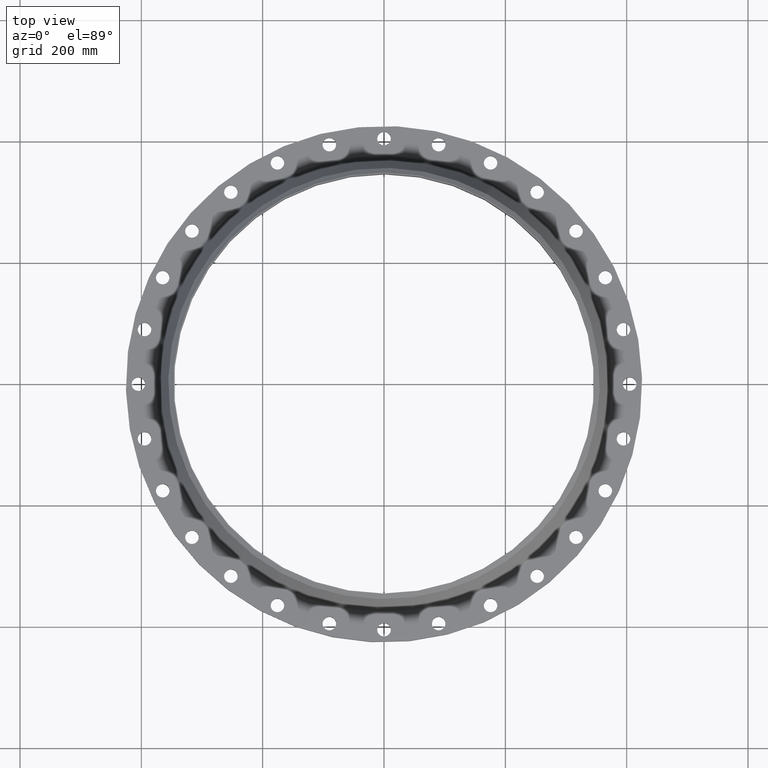
[diagram: clean part render]
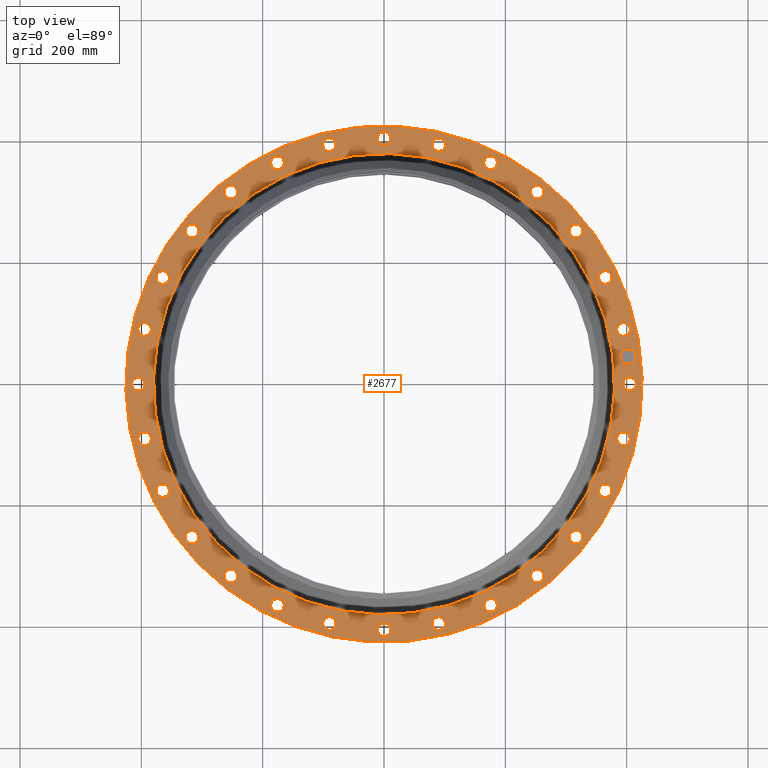
[diagram: same view with one face highlighted and labeled with its STEP entity id]
A machine part, top view. The second image highlights one B-rep face of the part: STEP entity #2677.
In plain terms, the highlighted planar face has unit normal (0, 0, -1).
Its self-contained STEP definition (entity closure, byte-faithful):
#65=AXIS2_PLACEMENT_3D('Circle Axis2P3D',#63,#64,$) ;
#89=AXIS2_PLACEMENT_3D('Circle Axis2P3D',#87,#88,$) ;
#123=AXIS2_PLACEMENT_3D('Circle Axis2P3D',#121,#122,$) ;
#147=AXIS2_PLACEMENT_3D('Circle Axis2P3D',#145,#146,$) ;
#164=AXIS2_PLACEMENT_3D('Circle Axis2P3D',#162,#163,$) ;
#199=AXIS2_PLACEMENT_3D('Circle Axis2P3D',#197,#198,$) ;
#1367=AXIS2_PLACEMENT_3D('Circle Axis2P3D',#1365,#1366,$) ;
#1379=AXIS2_PLACEMENT_3D('Circle Axis2P3D',#1377,#1378,$) ;
#1411=AXIS2_PLACEMENT_3D('Circle Axis2P3D',#1409,#1410,$) ;
#1423=AXIS2_PLACEMENT_3D('Circle Axis2P3D',#1421,#1422,$) ;
#1455=AXIS2_PLACEMENT_3D('Circle Axis2P3D',#1453,#1454,$) ;
#1467=AXIS2_PLACEMENT_3D('Circle Axis2P3D',#1465,#1466,$) ;
#1499=AXIS2_PLACEMENT_3D('Circle Axis2P3D',#1497,#1498,$) ;
#1511=AXIS2_PLACEMENT_3D('Circle Axis2P3D',#1509,#1510,$) ;
#1543=AXIS2_PLACEMENT_3D('Circle Axis2P3D',#1541,#1542,$) ;
#1555=AXIS2_PLACEMENT_3D('Circle Axis2P3D',#1553,#1554,$) ;
#1587=AXIS2_PLACEMENT_3D('Circle Axis2P3D',#1585,#1586,$) ;
#1599=AXIS2_PLACEMENT_3D('Circle Axis2P3D',#1597,#1598,$) ;
#1631=AXIS2_PLACEMENT_3D('Circle Axis2P3D',#1629,#1630,$) ;
#1643=AXIS2_PLACEMENT_3D('Circle Axis2P3D',#1641,#1642,$) ;
#1675=AXIS2_PLACEMENT_3D('Circle Axis2P3D',#1673,#1674,$) ;
#1687=AXIS2_PLACEMENT_3D('Circle Axis2P3D',#1685,#1686,$) ;
#1719=AXIS2_PLACEMENT_3D('Circle Axis2P3D',#1717,#1718,$) ;
#1731=AXIS2_PLACEMENT_3D('Circle Axis2P3D',#1729,#1730,$) ;
#1763=AXIS2_PLACEMENT_3D('Circle Axis2P3D',#1761,#1762,$) ;
#1775=AXIS2_PLACEMENT_3D('Circle Axis2P3D',#1773,#1774,$) ;
#1807=AXIS2_PLACEMENT_3D('Circle Axis2P3D',#1805,#1806,$) ;
#1819=AXIS2_PLACEMENT_3D('Circle Axis2P3D',#1817,#1818,$) ;
#1851=AXIS2_PLACEMENT_3D('Circle Axis2P3D',#1849,#1850,$) ;
#1863=AXIS2_PLACEMENT_3D('Circle Axis2P3D',#1861,#1862,$) ;
#1895=AXIS2_PLACEMENT_3D('Circle Axis2P3D',#1893,#1894,$) ;
#1907=AXIS2_PLACEMENT_3D('Circle Axis2P3D',#1905,#1906,$) ;
#1939=AXIS2_PLACEMENT_3D('Circle Axis2P3D',#1937,#1938,$) ;
#1951=AXIS2_PLACEMENT_3D('Circle Axis2P3D',#1949,#1950,$) ;
#1983=AXIS2_PLACEMENT_3D('Circle Axis2P3D',#1981,#1982,$) ;
#1995=AXIS2_PLACEMENT_3D('Circle Axis2P3D',#1993,#1994,$) ;
#2027=AXIS2_PLACEMENT_3D('Circle Axis2P3D',#2025,#2026,$) ;
#2039=AXIS2_PLACEMENT_3D('Circle Axis2P3D',#2037,#2038,$) ;
#2071=AXIS2_PLACEMENT_3D('Circle Axis2P3D',#2069,#2070,$) ;
#2083=AXIS2_PLACEMENT_3D('Circle Axis2P3D',#2081,#2082,$) ;
#2115=AXIS2_PLACEMENT_3D('Circle Axis2P3D',#2113,#2114,$) ;
#2127=AXIS2_PLACEMENT_3D('Circle Axis2P3D',#2125,#2126,$) ;
#2159=AXIS2_PLACEMENT_3D('Circle Axis2P3D',#2157,#2158,$) ;
#2171=AXIS2_PLACEMENT_3D('Circle Axis2P3D',#2169,#2170,$) ;
#2203=AXIS2_PLACEMENT_3D('Circle Axis2P3D',#2201,#2202,$) ;
#2215=AXIS2_PLACEMENT_3D('Circle Axis2P3D',#2213,#2214,$) ;
#2247=AXIS2_PLACEMENT_3D('Circle Axis2P3D',#2245,#2246,$) ;
#2259=AXIS2_PLACEMENT_3D('Circle Axis2P3D',#2257,#2258,$) ;
#2291=AXIS2_PLACEMENT_3D('Circle Axis2P3D',#2289,#2290,$) ;
#2303=AXIS2_PLACEMENT_3D('Circle Axis2P3D',#2301,#2302,$) ;
#2335=AXIS2_PLACEMENT_3D('Circle Axis2P3D',#2333,#2334,$) ;
#2347=AXIS2_PLACEMENT_3D('Circle Axis2P3D',#2345,#2346,$) ;
#2379=AXIS2_PLACEMENT_3D('Circle Axis2P3D',#2377,#2378,$) ;
#2391=AXIS2_PLACEMENT_3D('Circle Axis2P3D',#2389,#2390,$) ;
#2423=AXIS2_PLACEMENT_3D('Circle Axis2P3D',#2421,#2422,$) ;
#2435=AXIS2_PLACEMENT_3D('Circle Axis2P3D',#2433,#2434,$) ;
#2467=AXIS2_PLACEMENT_3D('Circle Axis2P3D',#2465,#2466,$) ;
#2479=AXIS2_PLACEMENT_3D('Circle Axis2P3D',#2477,#2478,$) ;
#2511=AXIS2_PLACEMENT_3D('Circle Axis2P3D',#2509,#2510,$) ;
#2523=AXIS2_PLACEMENT_3D('Circle Axis2P3D',#2521,#2522,$) ;
#2537=AXIS2_PLACEMENT_3D('Plane Axis2P3D',#2534,#2535,#2536) ;
#2661=AXIS2_PLACEMENT_3D('Circle Axis2P3D',#2659,#2660,$) ;
#2670=AXIS2_PLACEMENT_3D('Circle Axis2P3D',#2668,#2669,$) ;
#46=CARTESIAN_POINT('Vertex',(15.5538636728,0.210947236987,1.38000000001)) ;
#60=CARTESIAN_POINT('Vertex',(16.3261363273,-0.210947236987,1.38000000001)) ;
#63=CARTESIAN_POINT('Axis2P3D Location',(15.9400000001,0.,1.38000000001)) ;
#87=CARTESIAN_POINT('Axis2P3D Location',(15.9400000001,0.,1.38000000001)) ;
#118=CARTESIAN_POINT('Vertex',(-8.03037777165,-14.6995079117,1.38000000001)) ;
#121=CARTESIAN_POINT('Axis2P3D Location',(0.,0.,1.38000000001)) ;
#125=CARTESIAN_POINT('Vertex',(8.03037777165,14.6995079117,1.38000000001)) ;
#145=CARTESIAN_POINT('Axis2P3D Location',(0.,0.,1.38000000001)) ;
#162=CARTESIAN_POINT('Axis2P3D Location',(0.,0.,1.38000000001)) ;
#166=CARTESIAN_POINT('Vertex',(7.1745114459,13.132855111,1.38000000001)) ;
#168=CARTESIAN_POINT('Vertex',(-7.1745114459,-13.132855111,1.38000000001)) ;
#197=CARTESIAN_POINT('Axis2P3D Location',(0.,0.,1.38000000001)) ;
#1355=CARTESIAN_POINT('Vertex',(-15.5538636728,-0.210947236987,1.38000000001)) ;
#1362=CARTESIAN_POINT('Vertex',(-16.3261363273,0.210947236987,1.38000000001)) ;
#1365=CARTESIAN_POINT('Axis2P3D Location',(-15.9400000001,-9.03086900289E-015,1.38000000001)) ;
#1377=CARTESIAN_POINT('Axis2P3D Location',(-15.9400000001,-9.03086900289E-015,1.38000000001)) ;
#1399=CARTESIAN_POINT('Vertex',(15.1169556607,3.66671862044,1.38000000001)) ;
#1406=CARTESIAN_POINT('Vertex',(15.9637461798,3.42724875411,1.38000000001)) ;
#1409=CARTESIAN_POINT('Axis2P3D Location',(15.5403509202,3.54698368728,1.38000000001)) ;
#1421=CARTESIAN_POINT('Axis2P3D Location',(15.5403509202,3.54698368728,1.38000000001)) ;
#1443=CARTESIAN_POINT('Vertex',(-15.1169556607,-3.66671862044,1.38000000001)) ;
#1450=CARTESIAN_POINT('Vertex',(-15.9637461798,-3.42724875411,1.38000000001)) ;
#1453=CARTESIAN_POINT('Axis2P3D Location',(-15.5403509202,-3.54698368728,1.38000000001)) ;
#1465=CARTESIAN_POINT('Axis2P3D Location',(-15.5403509202,-3.54698368728,1.38000000001)) ;
#1487=CARTESIAN_POINT('Vertex',(15.2108360131,-3.25540192177,1.38000000001)) ;
#1494=CARTESIAN_POINT('Vertex',(15.8698658274,-3.83856545278,1.38000000001)) ;
#1497=CARTESIAN_POINT('Axis2P3D Location',(15.5403509202,-3.54698368728,1.38000000001)) ;
#1509=CARTESIAN_POINT('Axis2P3D Location',(15.5403509202,-3.54698368728,1.38000000001)) ;
#1531=CARTESIAN_POINT('Vertex',(9.53275018849,12.2920237444,1.38000000001)) ;
#1538=CARTESIAN_POINT('Vertex',(10.3441046948,12.6327639168,1.38000000001)) ;
#1541=CARTESIAN_POINT('Axis2P3D Location',(9.93842744167,12.4623938306,1.38000000001)) ;
#1553=CARTESIAN_POINT('Axis2P3D Location',(9.93842744167,12.4623938306,1.38000000001)) ;
#1575=CARTESIAN_POINT('Vertex',(-14.1050735208,6.5585116348,1.38000000001)) ;
#1582=CARTESIAN_POINT('Vertex',(-14.6178139881,7.27370196833,1.38000000001)) ;
#1585=CARTESIAN_POINT('Axis2P3D Location',(-14.3614437544,6.91610680156,1.38000000001)) ;
#1597=CARTESIAN_POINT('Axis2P3D Location',(-14.3614437544,6.91610680156,1.38000000001)) ;
#1619=CARTESIAN_POINT('Vertex',(-3.66671862044,15.1169556607,1.38000000001)) ;
#1626=CARTESIAN_POINT('Vertex',(-3.42724875411,15.9637461798,1.38000000001)) ;
#1629=CARTESIAN_POINT('Axis2P3D Location',(-3.54698368728,15.5403509202,1.38000000001)) ;
#1641=CARTESIAN_POINT('Axis2P3D Location',(-3.54698368728,15.5403509202,1.38000000001)) ;
#1663=CARTESIAN_POINT('Vertex',(12.2920237444,-9.53275018849,1.38000000001)) ;
#1670=CARTESIAN_POINT('Vertex',(12.6327639168,-10.3441046948,1.38000000001)) ;
#1673=CARTESIAN_POINT('Axis2P3D Location',(12.4623938306,-9.93842744167,1.38000000001)) ;
#1685=CARTESIAN_POINT('Axis2P3D Location',(12.4623938306,-9.93842744167,1.38000000001)) ;
#1707=CARTESIAN_POINT('Vertex',(12.0289768424,9.86260057053,1.38000000001)) ;
#1714=CARTESIAN_POINT('Vertex',(12.8958108187,10.0142543128,1.38000000001)) ;
#1717=CARTESIAN_POINT('Axis2P3D Location',(12.4623938306,9.93842744167,1.38000000001)) ;
#1729=CARTESIAN_POINT('Axis2P3D Location',(12.4623938306,9.93842744167,1.38000000001)) ;
#1751=CARTESIAN_POINT('Vertex',(9.86260057053,-12.0289768424,1.38000000001)) ;
#1758=CARTESIAN_POINT('Vertex',(10.0142543128,-12.8958108187,1.38000000001)) ;
#1761=CARTESIAN_POINT('Axis2P3D Location',(9.93842744167,-12.4623938306,1.38000000001)) ;
#1773=CARTESIAN_POINT('Axis2P3D Location',(9.93842744167,-12.4623938306,1.38000000001)) ;
#1795=CARTESIAN_POINT('Vertex',(-9.86260057053,12.0289768424,1.38000000001)) ;
#1802=CARTESIAN_POINT('Vertex',(-10.0142543128,12.8958108187,1.38000000001)) ;
#1805=CARTESIAN_POINT('Axis2P3D Location',(-9.93842744167,12.4623938306,1.38000000001)) ;
#1817=CARTESIAN_POINT('Axis2P3D Location',(-9.93842744167,12.4623938306,1.38000000001)) ;
#1839=CARTESIAN_POINT('Vertex',(6.93862542139,-13.9220203689,1.38000000001)) ;
#1846=CARTESIAN_POINT('Vertex',(6.89358818174,-14.80086714,1.38000000001)) ;
#1849=CARTESIAN_POINT('Axis2P3D Location',(6.91610680156,-14.3614437544,1.38000000001)) ;
#1861=CARTESIAN_POINT('Axis2P3D Location',(6.91610680156,-14.3614437544,1.38000000001)) ;
#1883=CARTESIAN_POINT('Vertex',(3.25540192177,15.2108360131,1.38000000001)) ;
#1890=CARTESIAN_POINT('Vertex',(3.83856545278,15.8698658274,1.38000000001)) ;
#1893=CARTESIAN_POINT('Axis2P3D Location',(3.54698368728,15.5403509202,1.38000000001)) ;
#1905=CARTESIAN_POINT('Axis2P3D Location',(3.54698368728,15.5403509202,1.38000000001)) ;
#1927=CARTESIAN_POINT('Vertex',(3.66671862044,-15.1169556607,1.38000000001)) ;
#1934=CARTESIAN_POINT('Vertex',(3.42724875411,-15.9637461798,1.38000000001)) ;
#1937=CARTESIAN_POINT('Axis2P3D Location',(3.54698368728,-15.5403509202,1.38000000001)) ;
#1949=CARTESIAN_POINT('Axis2P3D Location',(3.54698368728,-15.5403509202,1.38000000001)) ;
#1971=CARTESIAN_POINT('Vertex',(13.9220203689,6.93862542139,1.38000000001)) ;
#1978=CARTESIAN_POINT('Vertex',(14.80086714,6.89358818174,1.38000000001)) ;
#1981=CARTESIAN_POINT('Axis2P3D Location',(14.3614437544,6.91610680156,1.38000000001)) ;
#1993=CARTESIAN_POINT('Axis2P3D Location',(14.3614437544,6.91610680156,1.38000000001)) ;
#2015=CARTESIAN_POINT('Vertex',(0.210947236987,-15.5538636728,1.38000000001)) ;
#2022=CARTESIAN_POINT('Vertex',(-0.210947236987,-16.3261363273,1.38000000001)) ;
#2025=CARTESIAN_POINT('Axis2P3D Location',(4.51543450144E-015,-15.9400000001,1.38000000001)) ;
#2037=CARTESIAN_POINT('Axis2P3D Location',(4.51543450144E-015,-15.9400000001,1.38000000001)) ;
#2059=CARTESIAN_POINT('Vertex',(-15.2108360131,3.25540192177,1.38000000001)) ;
#2066=CARTESIAN_POINT('Vertex',(-15.8698658274,3.83856545278,1.38000000001)) ;
#2069=CARTESIAN_POINT('Axis2P3D Location',(-15.5403509202,3.54698368728,1.38000000001)) ;
#2081=CARTESIAN_POINT('Axis2P3D Location',(-15.5403509202,3.54698368728,1.38000000001)) ;
#2103=CARTESIAN_POINT('Vertex',(-3.25540192177,-15.2108360131,1.38000000001)) ;
#2110=CARTESIAN_POINT('Vertex',(-3.83856545278,-15.8698658274,1.38000000001)) ;
#2113=CARTESIAN_POINT('Axis2P3D Location',(-3.54698368728,-15.5403509202,1.38000000001)) ;
#2125=CARTESIAN_POINT('Axis2P3D Location',(-3.54698368728,-15.5403509202,1.38000000001)) ;
#2147=CARTESIAN_POINT('Vertex',(-12.2920237444,9.53275018849,1.38000000001)) ;
#2154=CARTESIAN_POINT('Vertex',(-12.6327639168,10.3441046948,1.38000000001)) ;
#2157=CARTESIAN_POINT('Axis2P3D Location',(-12.4623938306,9.93842744167,1.38000000001)) ;
#2169=CARTESIAN_POINT('Axis2P3D Location',(-12.4623938306,9.93842744167,1.38000000001)) ;
#2191=CARTESIAN_POINT('Vertex',(-6.5585116348,-14.1050735208,1.38000000001)) ;
#2198=CARTESIAN_POINT('Vertex',(-7.27370196833,-14.6178139881,1.38000000001)) ;
#2201=CARTESIAN_POINT('Axis2P3D Location',(-6.91610680156,-14.3614437544,1.38000000001)) ;
#2213=CARTESIAN_POINT('Axis2P3D Location',(-6.91610680156,-14.3614437544,1.38000000001)) ;
#2235=CARTESIAN_POINT('Vertex',(-6.93862542139,13.9220203689,1.38000000001)) ;
#2242=CARTESIAN_POINT('Vertex',(-6.89358818174,14.80086714,1.38000000001)) ;
#2245=CARTESIAN_POINT('Axis2P3D Location',(-6.91610680156,14.3614437544,1.38000000001)) ;
#2257=CARTESIAN_POINT('Axis2P3D Location',(-6.91610680156,14.3614437544,1.38000000001)) ;
#2279=CARTESIAN_POINT('Vertex',(-9.53275018849,-12.2920237444,1.38000000001)) ;
#2286=CARTESIAN_POINT('Vertex',(-10.3441046948,-12.6327639168,1.38000000001)) ;
#2289=CARTESIAN_POINT('Axis2P3D Location',(-9.93842744167,-12.4623938306,1.38000000001)) ;
#2301=CARTESIAN_POINT('Axis2P3D Location',(-9.93842744167,-12.4623938306,1.38000000001)) ;
#2323=CARTESIAN_POINT('Vertex',(-0.210947236987,15.5538636728,1.38000000001)) ;
#2330=CARTESIAN_POINT('Vertex',(0.210947236987,16.3261363273,1.38000000001)) ;
#2333=CARTESIAN_POINT('Axis2P3D Location',(-6.90200620363E-016,15.9400000001,1.38000000001)) ;
#2345=CARTESIAN_POINT('Axis2P3D Location',(-6.90200620363E-016,15.9400000001,1.38000000001)) ;
#2367=CARTESIAN_POINT('Vertex',(-12.0289768424,-9.86260057053,1.38000000001)) ;
#2374=CARTESIAN_POINT('Vertex',(-12.8958108187,-10.0142543128,1.38000000001)) ;
#2377=CARTESIAN_POINT('Axis2P3D Location',(-12.4623938306,-9.93842744167,1.38000000001)) ;
#2389=CARTESIAN_POINT('Axis2P3D Location',(-12.4623938306,-9.93842744167,1.38000000001)) ;
#2411=CARTESIAN_POINT('Vertex',(6.5585116348,14.1050735208,1.38000000001)) ;
#2418=CARTESIAN_POINT('Vertex',(7.27370196833,14.6178139881,1.38000000001)) ;
#2421=CARTESIAN_POINT('Axis2P3D Location',(6.91610680156,14.3614437544,1.38000000001)) ;
#2433=CARTESIAN_POINT('Axis2P3D Location',(6.91610680156,14.3614437544,1.38000000001)) ;
#2455=CARTESIAN_POINT('Vertex',(-13.9220203689,-6.93862542139,1.38000000001)) ;
#2462=CARTESIAN_POINT('Vertex',(-14.80086714,-6.89358818174,1.38000000001)) ;
#2465=CARTESIAN_POINT('Axis2P3D Location',(-14.3614437544,-6.91610680156,1.38000000001)) ;
#2477=CARTESIAN_POINT('Axis2P3D Location',(-14.3614437544,-6.91610680156,1.38000000001)) ;
#2499=CARTESIAN_POINT('Vertex',(14.1050735208,-6.5585116348,1.38000000001)) ;
#2506=CARTESIAN_POINT('Vertex',(14.6178139881,-7.27370196833,1.38000000001)) ;
#2509=CARTESIAN_POINT('Axis2P3D Location',(14.3614437544,-6.91610680156,1.38000000001)) ;
#2521=CARTESIAN_POINT('Axis2P3D Location',(14.3614437544,-6.91610680156,1.38000000001)) ;
#2534=CARTESIAN_POINT('Axis2P3D Location',(0.,16.7500000001,1.38000000001)) ;
#2659=CARTESIAN_POINT('Axis2P3D Location',(15.8397726258,1.78471374909,1.38000000001)) ;
#2663=CARTESIAN_POINT('Vertex',(15.783790516,2.28156871525,1.38000000001)) ;
#2665=CARTESIAN_POINT('Vertex',(15.8957547355,1.28785878294,1.38000000001)) ;
#2668=CARTESIAN_POINT('Axis2P3D Location',(15.8397726258,1.78471374909,1.38000000001)) ;
#64=DIRECTION('Axis2P3D Direction',(0.,-0.,-0.0393700787402)) ;
#88=DIRECTION('Axis2P3D Direction',(0.,-0.,-0.0393700787402)) ;
#122=DIRECTION('Axis2P3D Direction',(0.,0.,-0.0393700787402)) ;
#146=DIRECTION('Axis2P3D Direction',(0.,0.,-0.0393700787402)) ;
#163=DIRECTION('Axis2P3D Direction',(0.,0.,-0.0393700787402)) ;
#198=DIRECTION('Axis2P3D Direction',(0.,0.,-0.0393700787402)) ;
#1366=DIRECTION('Axis2P3D Direction',(-0.,0.,-0.0393700787402)) ;
#1378=DIRECTION('Axis2P3D Direction',(-0.,0.,-0.0393700787402)) ;
#1410=DIRECTION('Axis2P3D Direction',(0.,0.,-0.0393700787402)) ;
#1422=DIRECTION('Axis2P3D Direction',(0.,0.,-0.0393700787402)) ;
#1454=DIRECTION('Axis2P3D Direction',(-0.,0.,-0.0393700787402)) ;
#1466=DIRECTION('Axis2P3D Direction',(-0.,0.,-0.0393700787402)) ;
#1498=DIRECTION('Axis2P3D Direction',(0.,-0.,-0.0393700787402)) ;
#1510=DIRECTION('Axis2P3D Direction',(0.,-0.,-0.0393700787402)) ;
#1542=DIRECTION('Axis2P3D Direction',(0.,0.,-0.0393700787402)) ;
#1554=DIRECTION('Axis2P3D Direction',(0.,0.,-0.0393700787402)) ;
#1586=DIRECTION('Axis2P3D Direction',(0.,0.,-0.0393700787402)) ;
#1598=DIRECTION('Axis2P3D Direction',(0.,0.,-0.0393700787402)) ;
#1630=DIRECTION('Axis2P3D Direction',(0.,0.,-0.0393700787402)) ;
#1642=DIRECTION('Axis2P3D Direction',(0.,0.,-0.0393700787402)) ;
#1674=DIRECTION('Axis2P3D Direction',(0.,-0.,-0.0393700787402)) ;
#1686=DIRECTION('Axis2P3D Direction',(0.,-0.,-0.0393700787402)) ;
#1718=DIRECTION('Axis2P3D Direction',(0.,0.,-0.0393700787402)) ;
#1730=DIRECTION('Axis2P3D Direction',(0.,0.,-0.0393700787402)) ;
#1762=DIRECTION('Axis2P3D Direction',(0.,-0.,-0.0393700787402)) ;
#1774=DIRECTION('Axis2P3D Direction',(0.,-0.,-0.0393700787402)) ;
#1806=DIRECTION('Axis2P3D Direction',(0.,0.,-0.0393700787402)) ;
#1818=DIRECTION('Axis2P3D Direction',(0.,0.,-0.0393700787402)) ;
#1850=DIRECTION('Axis2P3D Direction',(0.,-0.,-0.0393700787402)) ;
#1862=DIRECTION('Axis2P3D Direction',(0.,-0.,-0.0393700787402)) ;
#1894=DIRECTION('Axis2P3D Direction',(0.,0.,-0.0393700787402)) ;
#1906=DIRECTION('Axis2P3D Direction',(0.,0.,-0.0393700787402)) ;
#1938=DIRECTION('Axis2P3D Direction',(0.,-0.,-0.0393700787402)) ;
#1950=DIRECTION('Axis2P3D Direction',(0.,-0.,-0.0393700787402)) ;
#1982=DIRECTION('Axis2P3D Direction',(0.,0.,-0.0393700787402)) ;
#1994=DIRECTION('Axis2P3D Direction',(0.,0.,-0.0393700787402)) ;
#2026=DIRECTION('Axis2P3D Direction',(0.,-0.,-0.0393700787402)) ;
#2038=DIRECTION('Axis2P3D Direction',(0.,-0.,-0.0393700787402)) ;
#2070=DIRECTION('Axis2P3D Direction',(0.,0.,-0.0393700787402)) ;
#2082=DIRECTION('Axis2P3D Direction',(0.,0.,-0.0393700787402)) ;
#2114=DIRECTION('Axis2P3D Direction',(-0.,0.,-0.0393700787402)) ;
#2126=DIRECTION('Axis2P3D Direction',(-0.,0.,-0.0393700787402)) ;
#2158=DIRECTION('Axis2P3D Direction',(0.,0.,-0.0393700787402)) ;
#2170=DIRECTION('Axis2P3D Direction',(0.,0.,-0.0393700787402)) ;
#2202=DIRECTION('Axis2P3D Direction',(-0.,0.,-0.0393700787402)) ;
#2214=DIRECTION('Axis2P3D Direction',(-0.,0.,-0.0393700787402)) ;
#2246=DIRECTION('Axis2P3D Direction',(0.,0.,-0.0393700787402)) ;
#2258=DIRECTION('Axis2P3D Direction',(0.,0.,-0.0393700787402)) ;
#2290=DIRECTION('Axis2P3D Direction',(-0.,0.,-0.0393700787402)) ;
#2302=DIRECTION('Axis2P3D Direction',(-0.,0.,-0.0393700787402)) ;
#2334=DIRECTION('Axis2P3D Direction',(0.,0.,-0.0393700787402)) ;
#2346=DIRECTION('Axis2P3D Direction',(0.,0.,-0.0393700787402)) ;
#2378=DIRECTION('Axis2P3D Direction',(-0.,0.,-0.0393700787402)) ;
#2390=DIRECTION('Axis2P3D Direction',(-0.,0.,-0.0393700787402)) ;
#2422=DIRECTION('Axis2P3D Direction',(0.,0.,-0.0393700787402)) ;
#2434=DIRECTION('Axis2P3D Direction',(0.,0.,-0.0393700787402)) ;
#2466=DIRECTION('Axis2P3D Direction',(-0.,0.,-0.0393700787402)) ;
#2478=DIRECTION('Axis2P3D Direction',(-0.,0.,-0.0393700787402)) ;
#2510=DIRECTION('Axis2P3D Direction',(0.,-0.,-0.0393700787402)) ;
#2522=DIRECTION('Axis2P3D Direction',(0.,-0.,-0.0393700787402)) ;
#2535=DIRECTION('Axis2P3D Direction',(0.,0.,-0.0393700787402)) ;
#2536=DIRECTION('Axis2P3D XDirection',(0.0393700787402,0.,0.)) ;
#2660=DIRECTION('Axis2P3D Direction',(0.,0.,-0.0393700787402)) ;
#2669=DIRECTION('Axis2P3D Direction',(0.,0.,-0.0393700787402)) ;
#2540=ORIENTED_EDGE('',*,*,#149,.F.) ;
#2541=ORIENTED_EDGE('',*,*,#127,.F.) ;
#2544=ORIENTED_EDGE('',*,*,#67,.T.) ;
#2545=ORIENTED_EDGE('',*,*,#91,.T.) ;
#2548=ORIENTED_EDGE('',*,*,#201,.T.) ;
#2549=ORIENTED_EDGE('',*,*,#170,.T.) ;
#2552=ORIENTED_EDGE('',*,*,#1513,.T.) ;
#2553=ORIENTED_EDGE('',*,*,#1501,.T.) ;
#2556=ORIENTED_EDGE('',*,*,#2525,.T.) ;
#2557=ORIENTED_EDGE('',*,*,#2513,.T.) ;
#2560=ORIENTED_EDGE('',*,*,#1689,.T.) ;
#2561=ORIENTED_EDGE('',*,*,#1677,.T.) ;
#2564=ORIENTED_EDGE('',*,*,#1777,.T.) ;
#2565=ORIENTED_EDGE('',*,*,#1765,.T.) ;
#2568=ORIENTED_EDGE('',*,*,#1865,.T.) ;
#2569=ORIENTED_EDGE('',*,*,#1853,.T.) ;
#2572=ORIENTED_EDGE('',*,*,#1953,.T.) ;
#2573=ORIENTED_EDGE('',*,*,#1941,.T.) ;
#2576=ORIENTED_EDGE('',*,*,#2041,.T.) ;
#2577=ORIENTED_EDGE('',*,*,#2029,.T.) ;
#2580=ORIENTED_EDGE('',*,*,#2129,.T.) ;
#2581=ORIENTED_EDGE('',*,*,#2117,.T.) ;
#2584=ORIENTED_EDGE('',*,*,#2217,.T.) ;
#2585=ORIENTED_EDGE('',*,*,#2205,.T.) ;
#2588=ORIENTED_EDGE('',*,*,#2305,.T.) ;
#2589=ORIENTED_EDGE('',*,*,#2293,.T.) ;
#2592=ORIENTED_EDGE('',*,*,#2393,.T.) ;
#2593=ORIENTED_EDGE('',*,*,#2381,.T.) ;
#2596=ORIENTED_EDGE('',*,*,#2481,.T.) ;
#2597=ORIENTED_EDGE('',*,*,#2469,.T.) ;
#2600=ORIENTED_EDGE('',*,*,#1469,.T.) ;
#2601=ORIENTED_EDGE('',*,*,#1457,.T.) ;
#2604=ORIENTED_EDGE('',*,*,#1381,.T.) ;
#2605=ORIENTED_EDGE('',*,*,#1369,.T.) ;
#2608=ORIENTED_EDGE('',*,*,#2085,.T.) ;
#2609=ORIENTED_EDGE('',*,*,#2073,.T.) ;
#2612=ORIENTED_EDGE('',*,*,#1601,.T.) ;
#2613=ORIENTED_EDGE('',*,*,#1589,.T.) ;
#2616=ORIENTED_EDGE('',*,*,#2173,.T.) ;
#2617=ORIENTED_EDGE('',*,*,#2161,.T.) ;
#2620=ORIENTED_EDGE('',*,*,#1821,.T.) ;
#2621=ORIENTED_EDGE('',*,*,#1809,.T.) ;
#2624=ORIENTED_EDGE('',*,*,#2261,.T.) ;
#2625=ORIENTED_EDGE('',*,*,#2249,.T.) ;
#2628=ORIENTED_EDGE('',*,*,#1645,.T.) ;
#2629=ORIENTED_EDGE('',*,*,#1633,.T.) ;
#2632=ORIENTED_EDGE('',*,*,#2349,.T.) ;
#2633=ORIENTED_EDGE('',*,*,#2337,.T.) ;
#2636=ORIENTED_EDGE('',*,*,#1909,.T.) ;
#2637=ORIENTED_EDGE('',*,*,#1897,.T.) ;
#2640=ORIENTED_EDGE('',*,*,#2437,.T.) ;
#2641=ORIENTED_EDGE('',*,*,#2425,.T.) ;
#2644=ORIENTED_EDGE('',*,*,#1557,.T.) ;
#2645=ORIENTED_EDGE('',*,*,#1545,.T.) ;
#2648=ORIENTED_EDGE('',*,*,#1733,.T.) ;
#2649=ORIENTED_EDGE('',*,*,#1721,.T.) ;
#2652=ORIENTED_EDGE('',*,*,#1997,.T.) ;
#2653=ORIENTED_EDGE('',*,*,#1985,.T.) ;
#2656=ORIENTED_EDGE('',*,*,#1425,.T.) ;
#2657=ORIENTED_EDGE('',*,*,#1413,.T.) ;
#2674=ORIENTED_EDGE('',*,*,#2667,.T.) ;
#2675=ORIENTED_EDGE('',*,*,#2672,.T.) ;
#2546=FACE_BOUND('',#2543,.T.) ;
#2550=FACE_BOUND('',#2547,.T.) ;
#2554=FACE_BOUND('',#2551,.T.) ;
#2558=FACE_BOUND('',#2555,.T.) ;
#2562=FACE_BOUND('',#2559,.T.) ;
#2566=FACE_BOUND('',#2563,.T.) ;
#2570=FACE_BOUND('',#2567,.T.) ;
#2574=FACE_BOUND('',#2571,.T.) ;
#2578=FACE_BOUND('',#2575,.T.) ;
#2582=FACE_BOUND('',#2579,.T.) ;
#2586=FACE_BOUND('',#2583,.T.) ;
#2590=FACE_BOUND('',#2587,.T.) ;
#2594=FACE_BOUND('',#2591,.T.) ;
#2598=FACE_BOUND('',#2595,.T.) ;
#2602=FACE_BOUND('',#2599,.T.) ;
#2606=FACE_BOUND('',#2603,.T.) ;
#2610=FACE_BOUND('',#2607,.T.) ;
#2614=FACE_BOUND('',#2611,.T.) ;
#2618=FACE_BOUND('',#2615,.T.) ;
#2622=FACE_BOUND('',#2619,.T.) ;
#2626=FACE_BOUND('',#2623,.T.) ;
#2630=FACE_BOUND('',#2627,.T.) ;
#2634=FACE_BOUND('',#2631,.T.) ;
#2638=FACE_BOUND('',#2635,.T.) ;
#2642=FACE_BOUND('',#2639,.T.) ;
#2646=FACE_BOUND('',#2643,.T.) ;
#2650=FACE_BOUND('',#2647,.T.) ;
#2654=FACE_BOUND('',#2651,.T.) ;
#2658=FACE_BOUND('',#2655,.T.) ;
#2676=FACE_BOUND('',#2673,.T.) ;
#2677=ADVANCED_FACE('PartBody',(#2542,#2546,#2550,#2554,#2558,#2562,#2566,#2570,#2574,#2578,#2582,#2586,#2590,#2594,#2598,#2602,#2606,#2610,#2614,#2618,#2622,#2626,#2630,#2634,#2638,#2642,#2646,#2650,#2654,#2658,#2676),#2538,.F.) ;
#66=CIRCLE('generated circle',#65,0.440000000002) ;
#90=CIRCLE('generated circle',#89,0.440000000002) ;
#124=CIRCLE('generated circle',#123,16.7500000001) ;
#148=CIRCLE('generated circle',#147,16.7500000001) ;
#165=CIRCLE('generated circle',#164,14.9648086474) ;
#200=CIRCLE('generated circle',#199,14.9648086474) ;
#1368=CIRCLE('generated circle',#1367,0.440000000002) ;
#1380=CIRCLE('generated circle',#1379,0.440000000002) ;
#1412=CIRCLE('generated circle',#1411,0.440000000002) ;
#1424=CIRCLE('generated circle',#1423,0.440000000002) ;
#1456=CIRCLE('generated circle',#1455,0.440000000002) ;
#1468=CIRCLE('generated circle',#1467,0.440000000002) ;
#1500=CIRCLE('generated circle',#1499,0.440000000002) ;
#1512=CIRCLE('generated circle',#1511,0.440000000002) ;
#1544=CIRCLE('generated circle',#1543,0.440000000002) ;
#1556=CIRCLE('generated circle',#1555,0.440000000002) ;
#1588=CIRCLE('generated circle',#1587,0.440000000002) ;
#1600=CIRCLE('generated circle',#1599,0.440000000002) ;
#1632=CIRCLE('generated circle',#1631,0.440000000002) ;
#1644=CIRCLE('generated circle',#1643,0.440000000002) ;
#1676=CIRCLE('generated circle',#1675,0.440000000002) ;
#1688=CIRCLE('generated circle',#1687,0.440000000002) ;
#1720=CIRCLE('generated circle',#1719,0.440000000002) ;
#1732=CIRCLE('generated circle',#1731,0.440000000002) ;
#1764=CIRCLE('generated circle',#1763,0.440000000002) ;
#1776=CIRCLE('generated circle',#1775,0.440000000002) ;
#1808=CIRCLE('generated circle',#1807,0.440000000002) ;
#1820=CIRCLE('generated circle',#1819,0.440000000002) ;
#1852=CIRCLE('generated circle',#1851,0.440000000002) ;
#1864=CIRCLE('generated circle',#1863,0.440000000002) ;
#1896=CIRCLE('generated circle',#1895,0.440000000002) ;
#1908=CIRCLE('generated circle',#1907,0.440000000002) ;
#1940=CIRCLE('generated circle',#1939,0.440000000002) ;
#1952=CIRCLE('generated circle',#1951,0.440000000002) ;
#1984=CIRCLE('generated circle',#1983,0.440000000002) ;
#1996=CIRCLE('generated circle',#1995,0.440000000002) ;
#2028=CIRCLE('generated circle',#2027,0.440000000002) ;
#2040=CIRCLE('generated circle',#2039,0.440000000002) ;
#2072=CIRCLE('generated circle',#2071,0.440000000002) ;
#2084=CIRCLE('generated circle',#2083,0.440000000002) ;
#2116=CIRCLE('generated circle',#2115,0.440000000002) ;
#2128=CIRCLE('generated circle',#2127,0.440000000002) ;
#2160=CIRCLE('generated circle',#2159,0.440000000002) ;
#2172=CIRCLE('generated circle',#2171,0.440000000002) ;
#2204=CIRCLE('generated circle',#2203,0.440000000002) ;
#2216=CIRCLE('generated circle',#2215,0.440000000002) ;
#2248=CIRCLE('generated circle',#2247,0.440000000002) ;
#2260=CIRCLE('generated circle',#2259,0.440000000002) ;
#2292=CIRCLE('generated circle',#2291,0.440000000002) ;
#2304=CIRCLE('generated circle',#2303,0.440000000002) ;
#2336=CIRCLE('generated circle',#2335,0.440000000002) ;
#2348=CIRCLE('generated circle',#2347,0.440000000002) ;
#2380=CIRCLE('generated circle',#2379,0.440000000002) ;
#2392=CIRCLE('generated circle',#2391,0.440000000002) ;
#2424=CIRCLE('generated circle',#2423,0.440000000002) ;
#2436=CIRCLE('generated circle',#2435,0.440000000002) ;
#2468=CIRCLE('generated circle',#2467,0.440000000002) ;
#2480=CIRCLE('generated circle',#2479,0.440000000002) ;
#2512=CIRCLE('generated circle',#2511,0.440000000002) ;
#2524=CIRCLE('generated circle',#2523,0.440000000002) ;
#2662=CIRCLE('generated circle',#2661,0.499998853999) ;
#2671=CIRCLE('generated circle',#2670,0.499998853999) ;
#67=EDGE_CURVE('',#47,#61,#66,.T.) ;
#91=EDGE_CURVE('',#61,#47,#90,.T.) ;
#127=EDGE_CURVE('',#119,#126,#124,.T.) ;
#149=EDGE_CURVE('',#126,#119,#148,.T.) ;
#170=EDGE_CURVE('',#167,#169,#165,.T.) ;
#201=EDGE_CURVE('',#169,#167,#200,.T.) ;
#1369=EDGE_CURVE('',#1356,#1363,#1368,.T.) ;
#1381=EDGE_CURVE('',#1363,#1356,#1380,.T.) ;
#1413=EDGE_CURVE('',#1400,#1407,#1412,.T.) ;
#1425=EDGE_CURVE('',#1407,#1400,#1424,.T.) ;
#1457=EDGE_CURVE('',#1444,#1451,#1456,.T.) ;
#1469=EDGE_CURVE('',#1451,#1444,#1468,.T.) ;
#1501=EDGE_CURVE('',#1488,#1495,#1500,.T.) ;
#1513=EDGE_CURVE('',#1495,#1488,#1512,.T.) ;
#1545=EDGE_CURVE('',#1532,#1539,#1544,.T.) ;
#1557=EDGE_CURVE('',#1539,#1532,#1556,.T.) ;
#1589=EDGE_CURVE('',#1576,#1583,#1588,.T.) ;
#1601=EDGE_CURVE('',#1583,#1576,#1600,.T.) ;
#1633=EDGE_CURVE('',#1620,#1627,#1632,.T.) ;
#1645=EDGE_CURVE('',#1627,#1620,#1644,.T.) ;
#1677=EDGE_CURVE('',#1664,#1671,#1676,.T.) ;
#1689=EDGE_CURVE('',#1671,#1664,#1688,.T.) ;
#1721=EDGE_CURVE('',#1708,#1715,#1720,.T.) ;
#1733=EDGE_CURVE('',#1715,#1708,#1732,.T.) ;
#1765=EDGE_CURVE('',#1752,#1759,#1764,.T.) ;
#1777=EDGE_CURVE('',#1759,#1752,#1776,.T.) ;
#1809=EDGE_CURVE('',#1796,#1803,#1808,.T.) ;
#1821=EDGE_CURVE('',#1803,#1796,#1820,.T.) ;
#1853=EDGE_CURVE('',#1840,#1847,#1852,.T.) ;
#1865=EDGE_CURVE('',#1847,#1840,#1864,.T.) ;
#1897=EDGE_CURVE('',#1884,#1891,#1896,.T.) ;
#1909=EDGE_CURVE('',#1891,#1884,#1908,.T.) ;
#1941=EDGE_CURVE('',#1928,#1935,#1940,.T.) ;
#1953=EDGE_CURVE('',#1935,#1928,#1952,.T.) ;
#1985=EDGE_CURVE('',#1972,#1979,#1984,.T.) ;
#1997=EDGE_CURVE('',#1979,#1972,#1996,.T.) ;
#2029=EDGE_CURVE('',#2016,#2023,#2028,.T.) ;
#2041=EDGE_CURVE('',#2023,#2016,#2040,.T.) ;
#2073=EDGE_CURVE('',#2060,#2067,#2072,.T.) ;
#2085=EDGE_CURVE('',#2067,#2060,#2084,.T.) ;
#2117=EDGE_CURVE('',#2104,#2111,#2116,.T.) ;
#2129=EDGE_CURVE('',#2111,#2104,#2128,.T.) ;
#2161=EDGE_CURVE('',#2148,#2155,#2160,.T.) ;
#2173=EDGE_CURVE('',#2155,#2148,#2172,.T.) ;
#2205=EDGE_CURVE('',#2192,#2199,#2204,.T.) ;
#2217=EDGE_CURVE('',#2199,#2192,#2216,.T.) ;
#2249=EDGE_CURVE('',#2236,#2243,#2248,.T.) ;
#2261=EDGE_CURVE('',#2243,#2236,#2260,.T.) ;
#2293=EDGE_CURVE('',#2280,#2287,#2292,.T.) ;
#2305=EDGE_CURVE('',#2287,#2280,#2304,.T.) ;
#2337=EDGE_CURVE('',#2324,#2331,#2336,.T.) ;
#2349=EDGE_CURVE('',#2331,#2324,#2348,.T.) ;
#2381=EDGE_CURVE('',#2368,#2375,#2380,.T.) ;
#2393=EDGE_CURVE('',#2375,#2368,#2392,.T.) ;
#2425=EDGE_CURVE('',#2412,#2419,#2424,.T.) ;
#2437=EDGE_CURVE('',#2419,#2412,#2436,.T.) ;
#2469=EDGE_CURVE('',#2456,#2463,#2468,.T.) ;
#2481=EDGE_CURVE('',#2463,#2456,#2480,.T.) ;
#2513=EDGE_CURVE('',#2500,#2507,#2512,.T.) ;
#2525=EDGE_CURVE('',#2507,#2500,#2524,.T.) ;
#2667=EDGE_CURVE('',#2664,#2666,#2662,.T.) ;
#2672=EDGE_CURVE('',#2666,#2664,#2671,.T.) ;
#2539=EDGE_LOOP('',(#2540,#2541)) ;
#2543=EDGE_LOOP('',(#2544,#2545)) ;
#2547=EDGE_LOOP('',(#2548,#2549)) ;
#2551=EDGE_LOOP('',(#2552,#2553)) ;
#2555=EDGE_LOOP('',(#2556,#2557)) ;
#2559=EDGE_LOOP('',(#2560,#2561)) ;
#2563=EDGE_LOOP('',(#2564,#2565)) ;
#2567=EDGE_LOOP('',(#2568,#2569)) ;
#2571=EDGE_LOOP('',(#2572,#2573)) ;
#2575=EDGE_LOOP('',(#2576,#2577)) ;
#2579=EDGE_LOOP('',(#2580,#2581)) ;
#2583=EDGE_LOOP('',(#2584,#2585)) ;
#2587=EDGE_LOOP('',(#2588,#2589)) ;
#2591=EDGE_LOOP('',(#2592,#2593)) ;
#2595=EDGE_LOOP('',(#2596,#2597)) ;
#2599=EDGE_LOOP('',(#2600,#2601)) ;
#2603=EDGE_LOOP('',(#2604,#2605)) ;
#2607=EDGE_LOOP('',(#2608,#2609)) ;
#2611=EDGE_LOOP('',(#2612,#2613)) ;
#2615=EDGE_LOOP('',(#2616,#2617)) ;
#2619=EDGE_LOOP('',(#2620,#2621)) ;
#2623=EDGE_LOOP('',(#2624,#2625)) ;
#2627=EDGE_LOOP('',(#2628,#2629)) ;
#2631=EDGE_LOOP('',(#2632,#2633)) ;
#2635=EDGE_LOOP('',(#2636,#2637)) ;
#2639=EDGE_LOOP('',(#2640,#2641)) ;
#2643=EDGE_LOOP('',(#2644,#2645)) ;
#2647=EDGE_LOOP('',(#2648,#2649)) ;
#2651=EDGE_LOOP('',(#2652,#2653)) ;
#2655=EDGE_LOOP('',(#2656,#2657)) ;
#2673=EDGE_LOOP('',(#2674,#2675)) ;
#2542=FACE_OUTER_BOUND('',#2539,.T.) ;
#2538=PLANE('',#2537) ;
#47=VERTEX_POINT('',#46) ;
#61=VERTEX_POINT('',#60) ;
#119=VERTEX_POINT('',#118) ;
#126=VERTEX_POINT('',#125) ;
#167=VERTEX_POINT('',#166) ;
#169=VERTEX_POINT('',#168) ;
#1356=VERTEX_POINT('',#1355) ;
#1363=VERTEX_POINT('',#1362) ;
#1400=VERTEX_POINT('',#1399) ;
#1407=VERTEX_POINT('',#1406) ;
#1444=VERTEX_POINT('',#1443) ;
#1451=VERTEX_POINT('',#1450) ;
#1488=VERTEX_POINT('',#1487) ;
#1495=VERTEX_POINT('',#1494) ;
#1532=VERTEX_POINT('',#1531) ;
#1539=VERTEX_POINT('',#1538) ;
#1576=VERTEX_POINT('',#1575) ;
#1583=VERTEX_POINT('',#1582) ;
#1620=VERTEX_POINT('',#1619) ;
#1627=VERTEX_POINT('',#1626) ;
#1664=VERTEX_POINT('',#1663) ;
#1671=VERTEX_POINT('',#1670) ;
#1708=VERTEX_POINT('',#1707) ;
#1715=VERTEX_POINT('',#1714) ;
#1752=VERTEX_POINT('',#1751) ;
#1759=VERTEX_POINT('',#1758) ;
#1796=VERTEX_POINT('',#1795) ;
#1803=VERTEX_POINT('',#1802) ;
#1840=VERTEX_POINT('',#1839) ;
#1847=VERTEX_POINT('',#1846) ;
#1884=VERTEX_POINT('',#1883) ;
#1891=VERTEX_POINT('',#1890) ;
#1928=VERTEX_POINT('',#1927) ;
#1935=VERTEX_POINT('',#1934) ;
#1972=VERTEX_POINT('',#1971) ;
#1979=VERTEX_POINT('',#1978) ;
#2016=VERTEX_POINT('',#2015) ;
#2023=VERTEX_POINT('',#2022) ;
#2060=VERTEX_POINT('',#2059) ;
#2067=VERTEX_POINT('',#2066) ;
#2104=VERTEX_POINT('',#2103) ;
#2111=VERTEX_POINT('',#2110) ;
#2148=VERTEX_POINT('',#2147) ;
#2155=VERTEX_POINT('',#2154) ;
#2192=VERTEX_POINT('',#2191) ;
#2199=VERTEX_POINT('',#2198) ;
#2236=VERTEX_POINT('',#2235) ;
#2243=VERTEX_POINT('',#2242) ;
#2280=VERTEX_POINT('',#2279) ;
#2287=VERTEX_POINT('',#2286) ;
#2324=VERTEX_POINT('',#2323) ;
#2331=VERTEX_POINT('',#2330) ;
#2368=VERTEX_POINT('',#2367) ;
#2375=VERTEX_POINT('',#2374) ;
#2412=VERTEX_POINT('',#2411) ;
#2419=VERTEX_POINT('',#2418) ;
#2456=VERTEX_POINT('',#2455) ;
#2463=VERTEX_POINT('',#2462) ;
#2500=VERTEX_POINT('',#2499) ;
#2507=VERTEX_POINT('',#2506) ;
#2664=VERTEX_POINT('',#2663) ;
#2666=VERTEX_POINT('',#2665) ;